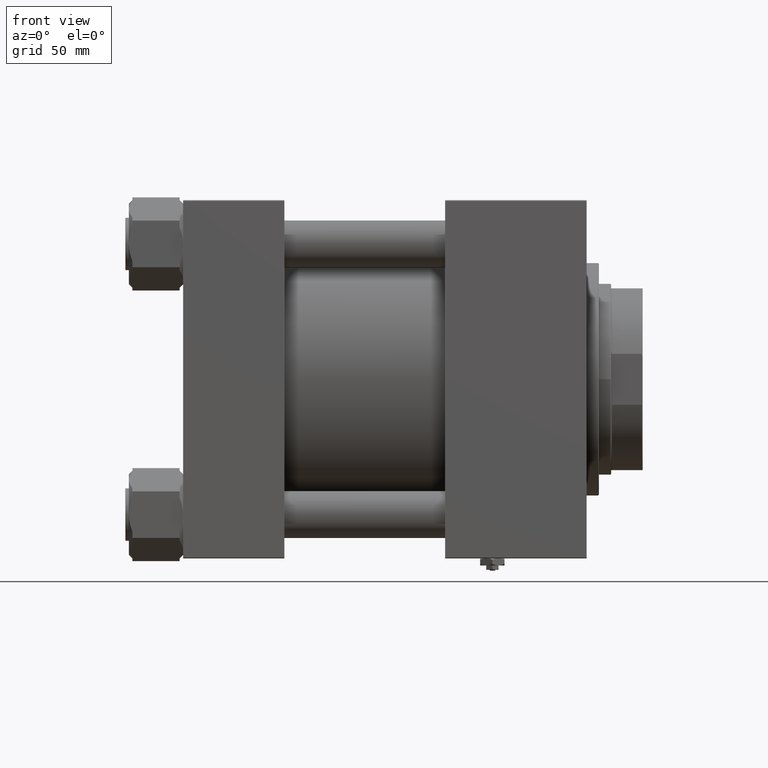
[diagram: clean part render]
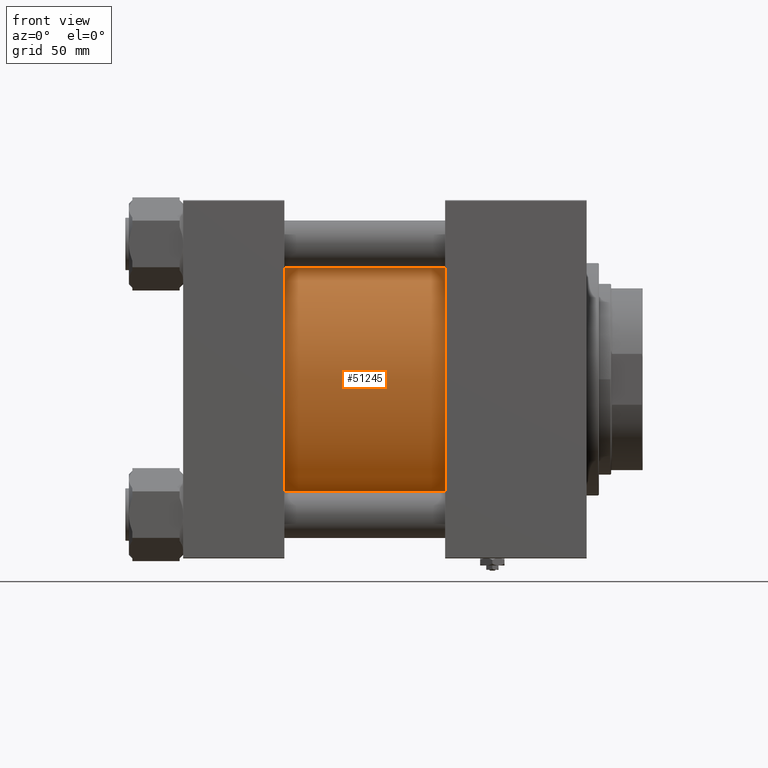
[diagram: same view with one face highlighted and labeled with its STEP entity id]
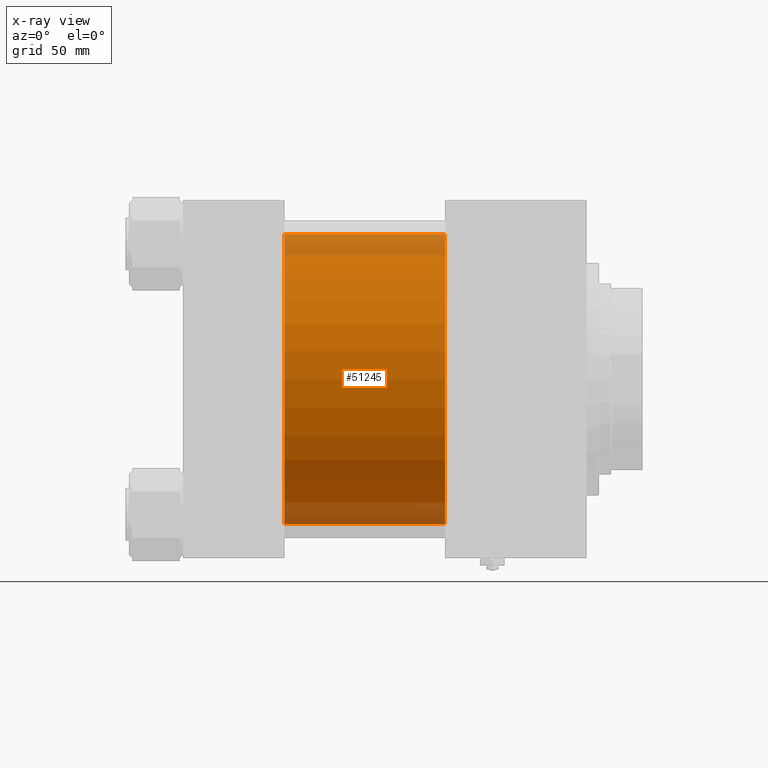
[diagram: x-ray of the same camera — body ghosted, the highlighted face saturated]
A machine part, front view. The second image highlights one B-rep face of the part: STEP entity #51245.
The next image is the same camera in x-ray: the body ghosted, the highlighted face saturated — about 14% of this face is hidden behind the body in this view.
In plain terms, the highlighted cylindrical surface (partial cylindrical patch) has radius 83 mm, axis along (-1, -0, -0).
Its self-contained STEP definition (entity closure, byte-faithful):
#120 = VECTOR ( 'NONE', #22651, 1000.000000000000000 ) ;
#176 = EDGE_CURVE ( 'NONE', #11138, #22332, #29968, .T. ) ;
#1584 = AXIS2_PLACEMENT_3D ( 'NONE', #46265, #9846, #13328 ) ;
#1817 = LINE ( 'NONE', #49680, #34174 ) ;
#5716 = CARTESIAN_POINT ( 'NONE',  ( 150.0000000000000000, 7.562483218957820855E-15, -83.00000000000000000 ) ) ;
#5802 = CARTESIAN_POINT ( 'NONE',  ( 150.0000000000000000, -2.602085213965210642E-15, 0.000000000000000000 ) ) ;
#6729 = CARTESIAN_POINT ( 'NONE',  ( 150.0000000000000000, -2.602085213965210642E-15, 83.00000000000000000 ) ) ;
#9846 = DIRECTION ( 'NONE',  ( 1.000000000000000000, 0.000000000000000000, 0.000000000000000000 ) ) ;
#11138 = VERTEX_POINT ( 'NONE', #50288 ) ;
#11985 = EDGE_LOOP ( 'NONE', ( #37087, #50987, #42680, #52446 ) ) ;
#13328 = DIRECTION ( 'NONE',  ( 0.000000000000000000, 0.000000000000000000, -1.000000000000000000 ) ) ;
#22058 = EDGE_CURVE ( 'NONE', #43631, #35917, #27127, .T. ) ;
#22332 = VERTEX_POINT ( 'NONE', #26817 ) ;
#22651 = DIRECTION ( 'NONE',  ( -1.000000000000000000, -0.000000000000000000, -0.000000000000000000 ) ) ;
#23173 = LINE ( 'NONE', #46830, #120 ) ;
#26061 = DIRECTION ( 'NONE',  ( 1.000000000000000000, -0.000000000000000000, -0.000000000000000000 ) ) ;
#26817 = CARTESIAN_POINT ( 'NONE',  ( 57.99999999999999289, 7.562483218957820855E-15, -83.00000000000000000 ) ) ;
#27127 = CIRCLE ( 'NONE', #1584, 83.00000000000000000 ) ;
#29968 = CIRCLE ( 'NONE', #51174, 83.00000000000000000 ) ;
#30276 = DIRECTION ( 'NONE',  ( 0.000000000000000000, 0.000000000000000000, 1.000000000000000000 ) ) ;
#34174 = VECTOR ( 'NONE', #46753, 1000.000000000000000 ) ;
#35917 = VERTEX_POINT ( 'NONE', #5716 ) ;
#37087 = ORIENTED_EDGE ( 'NONE', *, *, #48068, .F. ) ;
#37190 = DIRECTION ( 'NONE',  ( -1.000000000000000000, -0.000000000000000000, -0.000000000000000000 ) ) ;
#40667 = FACE_OUTER_BOUND ( 'NONE', #11985, .T. ) ;
#42236 = CYLINDRICAL_SURFACE ( 'NONE', #49525, 83.00000000000000000 ) ;
#42276 = DIRECTION ( 'NONE',  ( 0.000000000000000000, 0.000000000000000000, 1.000000000000000000 ) ) ;
#42680 = ORIENTED_EDGE ( 'NONE', *, *, #45873, .T. ) ;
#43631 = VERTEX_POINT ( 'NONE', #6729 ) ;
#45722 = CARTESIAN_POINT ( 'NONE',  ( 57.99999999999999289, -2.602085213965210642E-15, 0.000000000000000000 ) ) ;
#45873 = EDGE_CURVE ( 'NONE', #43631, #11138, #23173, .T. ) ;
#46265 = CARTESIAN_POINT ( 'NONE',  ( 150.0000000000000000, -2.602085213965210642E-15, 0.000000000000000000 ) ) ;
#46753 = DIRECTION ( 'NONE',  ( -1.000000000000000000, -0.000000000000000000, -0.000000000000000000 ) ) ;
#46830 = CARTESIAN_POINT ( 'NONE',  ( 150.0000000000000000, -2.602085213965210642E-15, 83.00000000000000000 ) ) ;
#48068 = EDGE_CURVE ( 'NONE', #35917, #22332, #1817, .T. ) ;
#49525 = AXIS2_PLACEMENT_3D ( 'NONE', #5802, #37190, #30276 ) ;
#49680 = CARTESIAN_POINT ( 'NONE',  ( 150.0000000000000000, 7.562483218957820855E-15, -83.00000000000000000 ) ) ;
#50288 = CARTESIAN_POINT ( 'NONE',  ( 57.99999999999999289, -2.602085213965210642E-15, 83.00000000000000000 ) ) ;
#50987 = ORIENTED_EDGE ( 'NONE', *, *, #22058, .F. ) ;
#51174 = AXIS2_PLACEMENT_3D ( 'NONE', #45722, #26061, #42276 ) ;
#51245 = ADVANCED_FACE ( 'NONE', ( #40667 ), #42236, .T. ) ;
#52446 = ORIENTED_EDGE ( 'NONE', *, *, #176, .T. ) ;